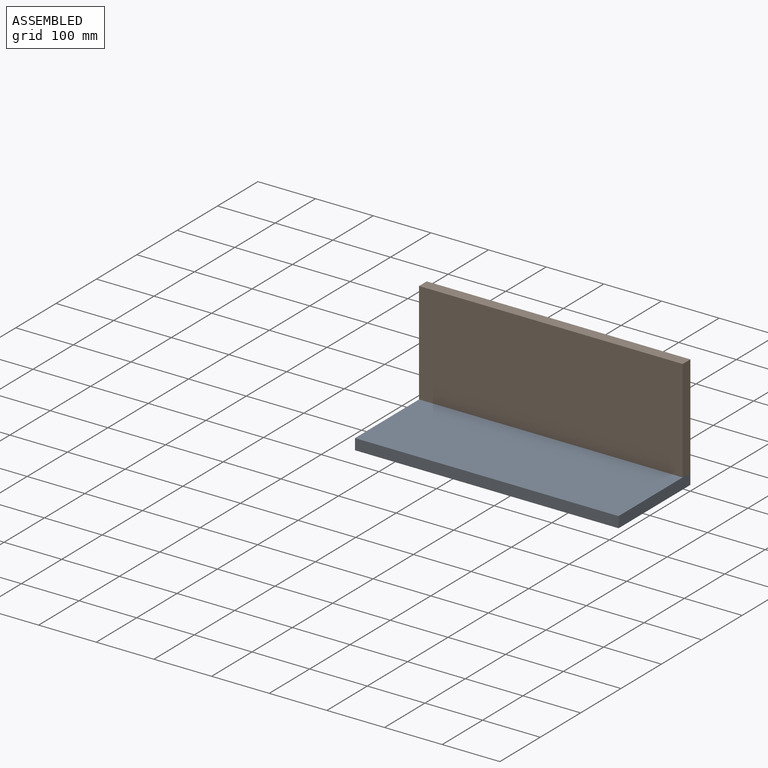
[diagram: assembled view]
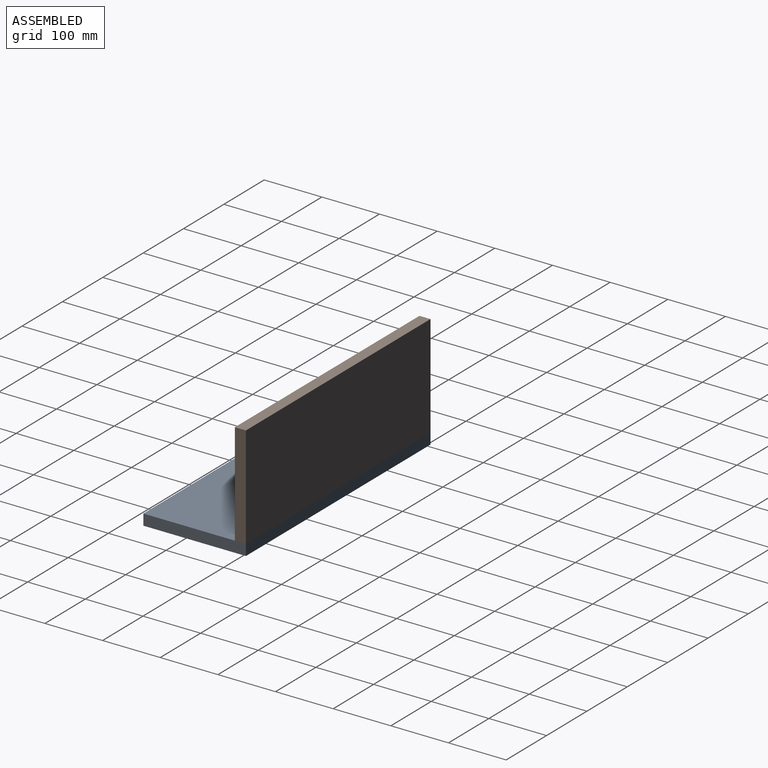
[diagram: assembled view, second angle]
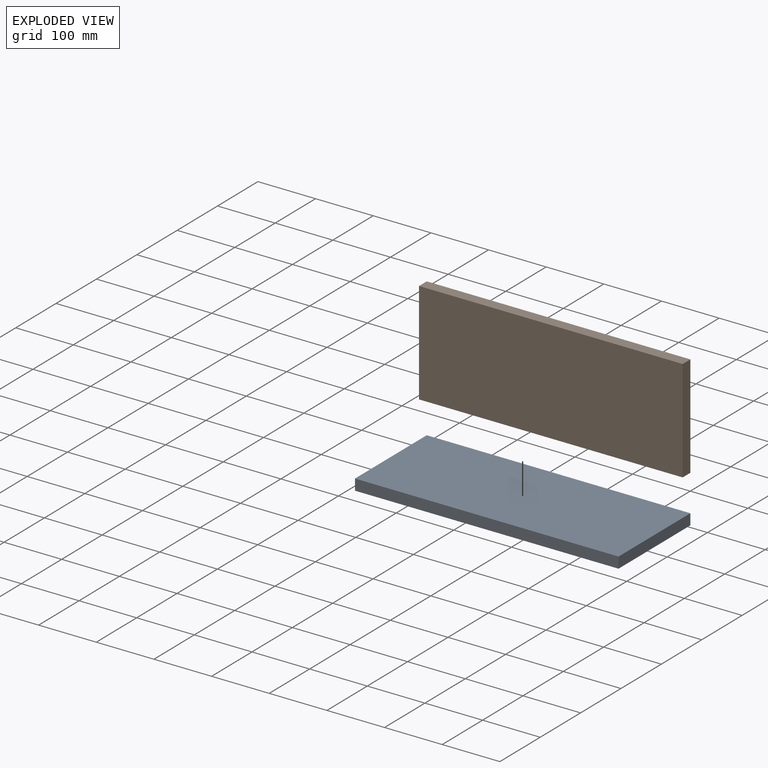
[diagram: exploded view]
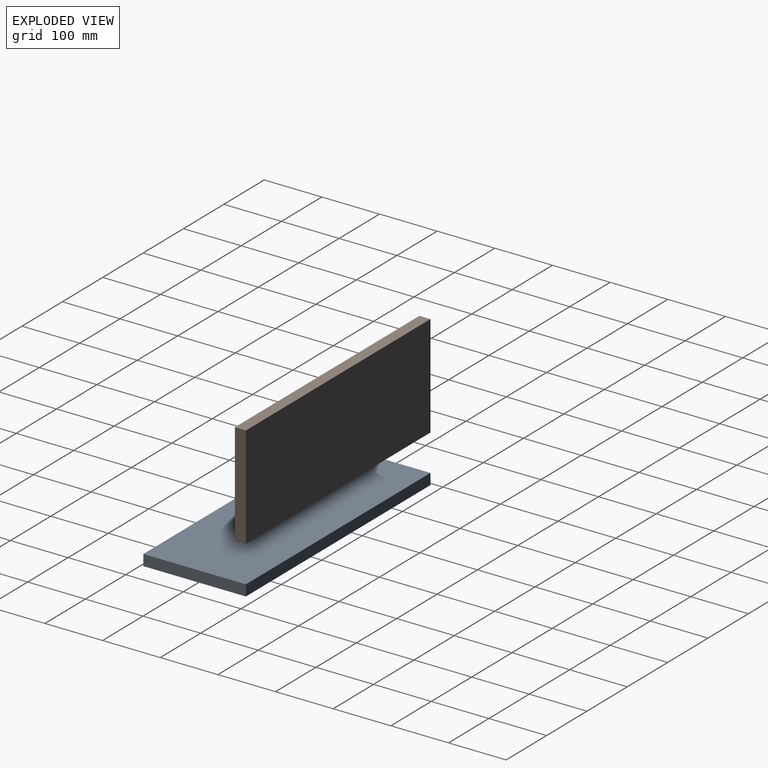
[diagram: exploded view, second angle]
ASSEMBLY  parts=2 mates=3
PART A: 6 faces, bbox 177.8x19.1x457.2 mm
  f0: plane 457.2x19.05mm, normal (-1,0,0), area 8709.7mm2, adj f1,f3,f4,f5
  f1: plane 457.2x177.8mm, normal (0,-1,0), area 81290.2mm2, adj f0,f2,f4,f5
  f2: plane 457.2x19.05mm, normal (1,0,0), area 8709.7mm2, adj f1,f3,f4,f5
  f3: plane 457.2x177.8mm, normal (0,1,0), area 81290.2mm2, adj f0,f2,f4,f5
  f4: plane 177.8x19.05mm, normal (0,0,1), area 3387.1mm2, adj f0,f1,f2,f3
  f5: plane 177.8x19.05mm, normal (0,0,-1), area 3387.1mm2, adj f0,f1,f2,f3
PART B: same geometry as A
PLACE A rot(axis=(0.58,-0.58,-0.58),120deg) t=(176.04,-8.25,109.76)mm
PLACE B rot(axis=(0,1,0),90deg) t=(-281.16,-8.25,287.56)mm
MATE planar B.f5 <-> A.f4  axis (-1,0,0) through (-281.16,-17.77,198.66)mm
MATE planar A.f0 <-> B.f3  axis (0,1,0) through (-52.56,-8.25,90.71)mm
MATE planar A.f3 <-> B.f2  axis (0,0,1) through (-52.56,-97.15,109.76)mm
